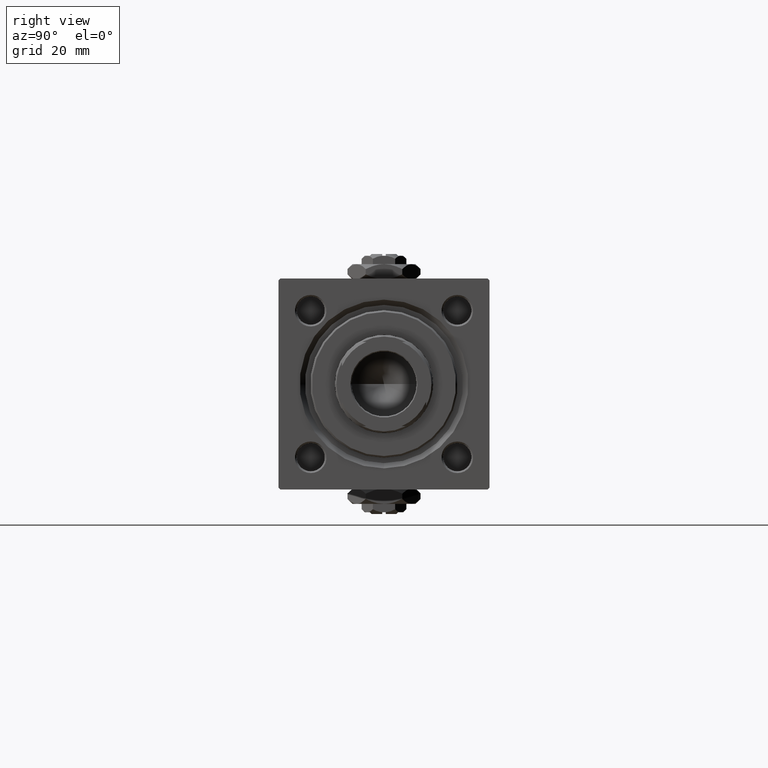
[diagram: clean part render]
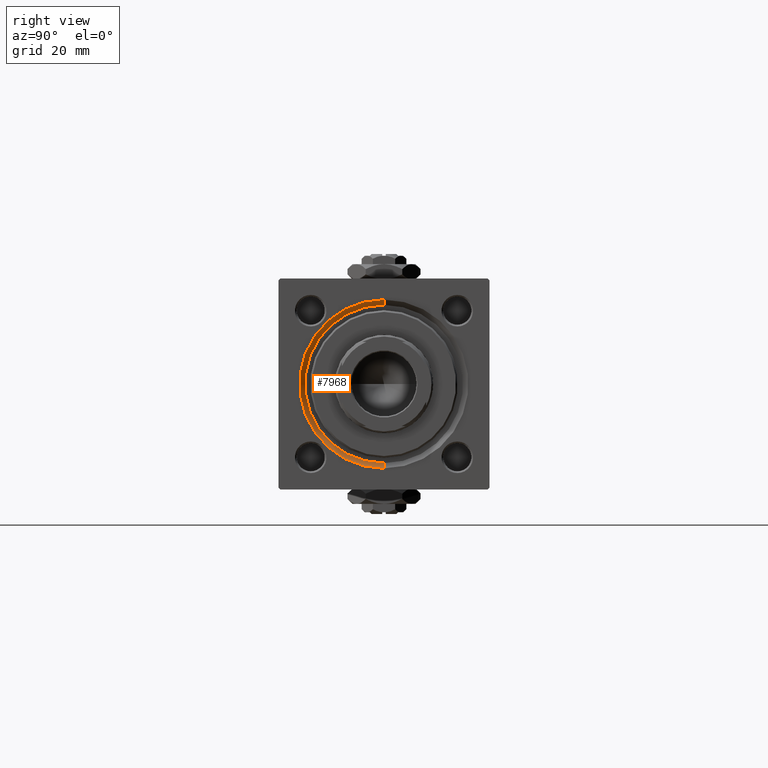
[diagram: same view with one face highlighted and labeled with its STEP entity id]
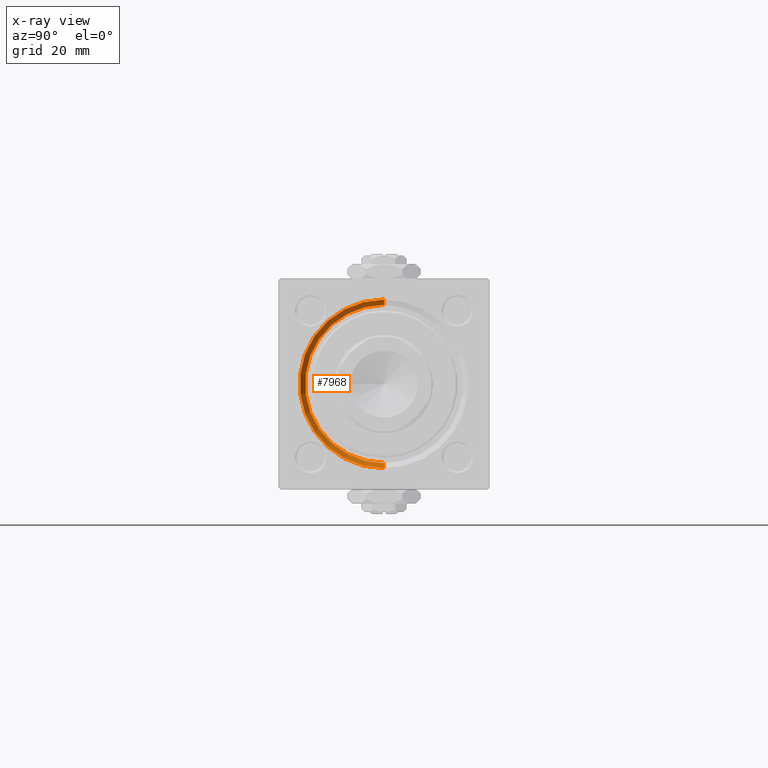
[diagram: x-ray of the same camera — body ghosted, the highlighted face saturated]
A machine part, right view. The second image highlights one B-rep face of the part: STEP entity #7968.
The next image is the same camera in x-ray: the body ghosted, the highlighted face saturated — about 0% of this face is hidden behind the body in this view.
In plain terms, the highlighted conical surface has half-angle 45 deg.
Its self-contained STEP definition (entity closure, byte-faithful):
#1177 = DIRECTION ( 'NONE',  ( 0.7071067811865524577, 0.000000000000000000, -0.7071067811865426878 ) ) ;
#5716 = EDGE_LOOP ( 'NONE', ( #18230, #49627, #19154, #34725 ) ) ;
#7310 = CIRCLE ( 'NONE', #20815, 22.50000000000000355 ) ;
#7543 = DIRECTION ( 'NONE',  ( 0.000000000000000000, 0.000000000000000000, -1.000000000000000000 ) ) ;
#7968 = ADVANCED_FACE ( 'NONE', ( #31056 ), #41454, .F. ) ;
#8564 = LINE ( 'NONE', #13057, #17340 ) ;
#10172 = CIRCLE ( 'NONE', #27868, 24.00000000000003908 ) ;
#13057 = CARTESIAN_POINT ( 'NONE',  ( 146.4999999999999432, 0.000000000000000000, -22.50000000000000355 ) ) ;
#15208 = DIRECTION ( 'NONE',  ( 1.000000000000000000, 0.000000000000000000, 0.000000000000000000 ) ) ;
#15534 = DIRECTION ( 'NONE',  ( 0.7071067811865524577, 8.659560562354874926E-17, 0.7071067811865426878 ) ) ;
#15849 = DIRECTION ( 'NONE',  ( 0.000000000000000000, 0.000000000000000000, 1.000000000000000000 ) ) ;
#17340 = VECTOR ( 'NONE', #1177, 1000.000000000000000 ) ;
#18230 = ORIENTED_EDGE ( 'NONE', *, *, #26247, .F. ) ;
#18440 = EDGE_CURVE ( 'NONE', #47415, #27404, #43816, .T. ) ;
#18668 = EDGE_CURVE ( 'NONE', #35817, #47391, #8564, .T. ) ;
#19154 = ORIENTED_EDGE ( 'NONE', *, *, #35809, .F. ) ;
#19532 = CARTESIAN_POINT ( 'NONE',  ( 146.4999999999999432, 0.000000000000000000, -22.50000000000000355 ) ) ;
#20244 = CARTESIAN_POINT ( 'NONE',  ( 146.4999999999999432, 0.000000000000000000, 0.000000000000000000 ) ) ;
#20815 = AXIS2_PLACEMENT_3D ( 'NONE', #20244, #32931, #24480 ) ;
#22576 = CARTESIAN_POINT ( 'NONE',  ( 148.0000000000000000, 2.939152317953652628E-15, 24.00000000000003908 ) ) ;
#23649 = CARTESIAN_POINT ( 'NONE',  ( 146.4999999999999432, 0.000000000000000000, 0.000000000000000000 ) ) ;
#24480 = DIRECTION ( 'NONE',  ( 0.000000000000000000, 0.000000000000000000, 1.000000000000000000 ) ) ;
#26247 = EDGE_CURVE ( 'NONE', #47415, #35817, #7310, .T. ) ;
#27404 = VERTEX_POINT ( 'NONE', #22576 ) ;
#27868 = AXIS2_PLACEMENT_3D ( 'NONE', #31431, #52067, #15849 ) ;
#30860 = CARTESIAN_POINT ( 'NONE',  ( 146.4999999999999432, 2.755455298081545172E-15, 22.50000000000000355 ) ) ;
#31056 = FACE_OUTER_BOUND ( 'NONE', #5716, .T. ) ;
#31431 = CARTESIAN_POINT ( 'NONE',  ( 148.0000000000000000, 0.000000000000000000, 0.000000000000000000 ) ) ;
#32931 = DIRECTION ( 'NONE',  ( 1.000000000000000000, 0.000000000000000000, 0.000000000000000000 ) ) ;
#34725 = ORIENTED_EDGE ( 'NONE', *, *, #18668, .F. ) ;
#35809 = EDGE_CURVE ( 'NONE', #47391, #27404, #10172, .T. ) ;
#35817 = VERTEX_POINT ( 'NONE', #19532 ) ;
#37390 = CARTESIAN_POINT ( 'NONE',  ( 146.4999999999999432, 2.755455298081545172E-15, 22.50000000000000355 ) ) ;
#38309 = VECTOR ( 'NONE', #15534, 1000.000000000000000 ) ;
#41454 = CONICAL_SURFACE ( 'NONE', #48198, 22.50000000000000355, 0.7853981633974415066 ) ;
#41877 = CARTESIAN_POINT ( 'NONE',  ( 148.0000000000000000, 0.000000000000000000, -24.00000000000003908 ) ) ;
#43816 = LINE ( 'NONE', #30860, #38309 ) ;
#47391 = VERTEX_POINT ( 'NONE', #41877 ) ;
#47415 = VERTEX_POINT ( 'NONE', #37390 ) ;
#48198 = AXIS2_PLACEMENT_3D ( 'NONE', #23649, #15208, #7543 ) ;
#49627 = ORIENTED_EDGE ( 'NONE', *, *, #18440, .T. ) ;
#52067 = DIRECTION ( 'NONE',  ( -1.000000000000000000, 0.000000000000000000, -0.000000000000000000 ) ) ;